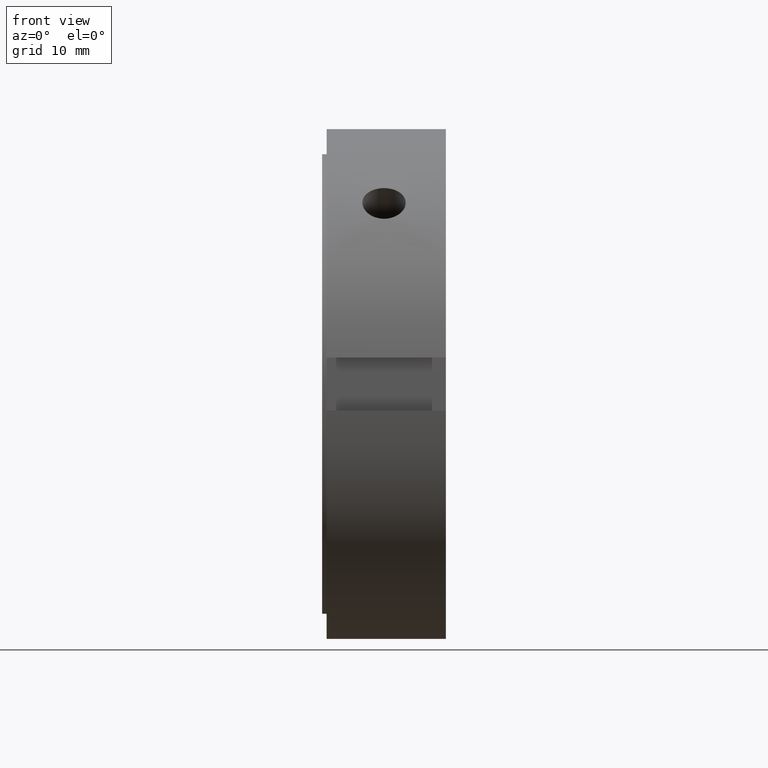
[diagram: clean part render]
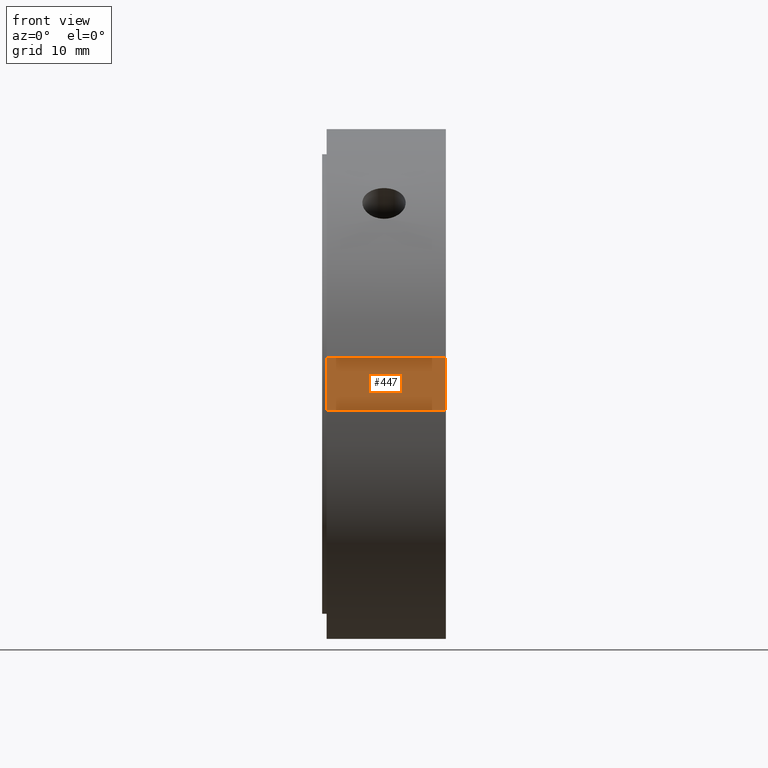
[diagram: same view with one face highlighted and labeled with its STEP entity id]
A machine part, front view. The second image highlights one B-rep face of the part: STEP entity #447.
In plain terms, the highlighted planar face has unit normal (0, 1, 0).
Its self-contained STEP definition (entity closure, byte-faithful):
#351=CARTESIAN_POINT('',(0.499999999999994,-26.500000000000004,3.000000000000003));
#352=VERTEX_POINT('',#351);
#361=CARTESIAN_POINT('',(13.999999999999995,-26.500000000000004,3.000000000000003));
#362=VERTEX_POINT('',#361);
#363=CARTESIAN_POINT('',(13.999999999999995,-26.500000000000004,3.000000000000003));
#364=DIRECTION('',(-1.0,0.0,0.0));
#365=VECTOR('',#364,13.500000000000000);
#366=LINE('',#363,#365);
#367=EDGE_CURVE('',#362,#352,#366,.T.);
#393=CARTESIAN_POINT('',(0.499999999999994,-26.500000000000004,-2.999999999999996));
#394=VERTEX_POINT('',#393);
#409=CARTESIAN_POINT('',(13.999999999999995,-26.500000000000004,-2.999999999999996));
#410=VERTEX_POINT('',#409);
#417=CARTESIAN_POINT('',(13.999999999999995,-26.500000000000004,-2.999999999999996));
#418=DIRECTION('',(-1.0,0.0,0.0));
#419=VECTOR('',#418,13.500000000000000);
#420=LINE('',#417,#419);
#421=EDGE_CURVE('',#410,#394,#420,.T.);
#426=CARTESIAN_POINT('',(13.999999999999995,-26.500000000000004,-2.999999999999996));
#427=DIRECTION('',(0.0,1.0,0.0));
#428=DIRECTION('',(0.0,0.0,1.0));
#429=AXIS2_PLACEMENT_3D('',#426,#427,#428);
#430=PLANE('',#429);
#431=CARTESIAN_POINT('',(0.499999999999993,-26.500000000000004,-2.999999999999996));
#432=DIRECTION('',(0.0,0.0,1.0));
#433=VECTOR('',#432,5.999999999999998);
#434=LINE('',#431,#433);
#435=EDGE_CURVE('',#394,#352,#434,.T.);
#436=ORIENTED_EDGE('',*,*,#435,.F.);
#437=ORIENTED_EDGE('',*,*,#421,.F.);
#438=CARTESIAN_POINT('',(13.999999999999995,-26.500000000000004,3.000000000000003));
#439=DIRECTION('',(0.0,0.0,-1.0));
#440=VECTOR('',#439,5.999999999999998);
#441=LINE('',#438,#440);
#442=EDGE_CURVE('',#362,#410,#441,.T.);
#443=ORIENTED_EDGE('',*,*,#442,.F.);
#444=ORIENTED_EDGE('',*,*,#367,.T.);
#445=EDGE_LOOP('',(#436,#437,#443,#444));
#446=FACE_OUTER_BOUND('',#445,.T.);
#447=ADVANCED_FACE('',(#446),#430,.F.);